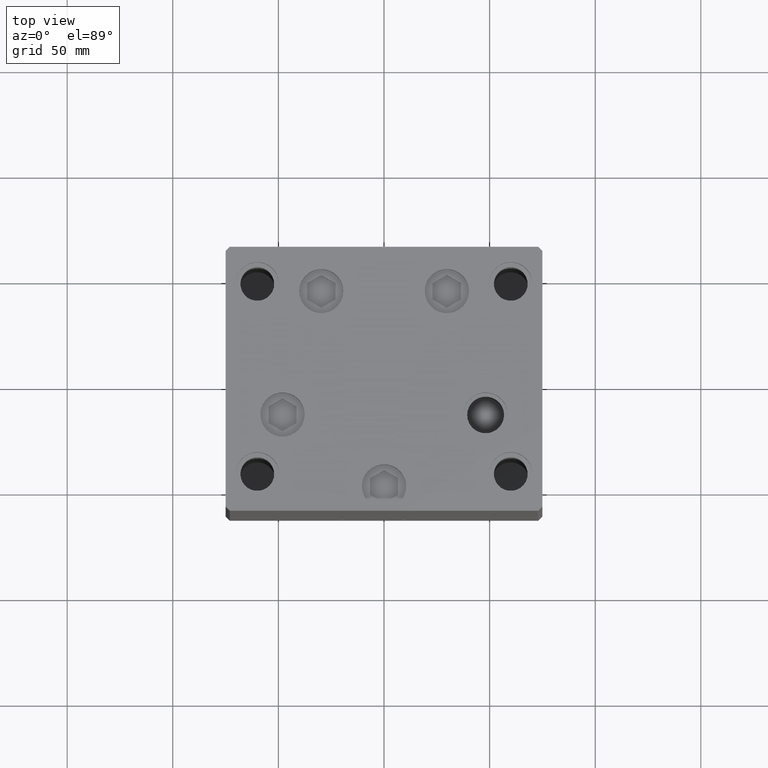
[diagram: clean part render]
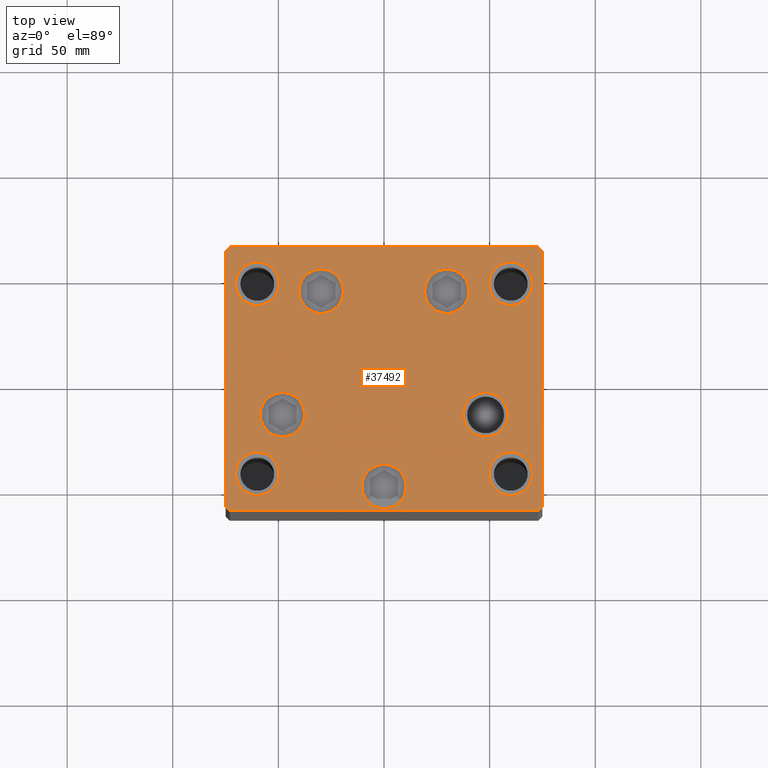
[diagram: same view with one face highlighted and labeled with its STEP entity id]
A machine part, top view. The second image highlights one B-rep face of the part: STEP entity #37492.
In plain terms, the highlighted planar face has unit normal (0, 0, 1).
Its self-contained STEP definition (entity closure, byte-faithful):
#206 = AXIS2_PLACEMENT_3D ( 'NONE', #4776, #27315, #5254 ) ;
#372 = FACE_BOUND ( 'NONE', #25570, .T. ) ;
#504 = CARTESIAN_POINT ( 'NONE',  ( -29.73102073172060500, 41.43749999999998579, 0.000000000000000000 ) ) ;
#571 = ORIENTED_EDGE ( 'NONE', *, *, #41883, .F. ) ;
#618 = EDGE_CURVE ( 'NONE', #41535, #44361, #8901, .T. ) ;
#691 = ORIENTED_EDGE ( 'NONE', *, *, #17236, .T. ) ;
#730 = EDGE_CURVE ( 'NONE', #46588, #30466, #32904, .T. ) ;
#834 = CIRCLE ( 'NONE', #22943, 10.50000000000000178 ) ;
#1082 = DIRECTION ( 'NONE',  ( 0.000000000000000000, -1.000000000000000000, 0.000000000000000000 ) ) ;
#1095 = EDGE_CURVE ( 'NONE', #34192, #30579, #35789, .T. ) ;
#1105 = ORIENTED_EDGE ( 'NONE', *, *, #13433, .T. ) ;
#1405 = CARTESIAN_POINT ( 'NONE',  ( 48.08326112068522207, -16.99999999999999645, 0.000000000000000000 ) ) ;
#1420 = VERTEX_POINT ( 'NONE', #30726 ) ;
#1573 = ORIENTED_EDGE ( 'NONE', *, *, #1095, .F. ) ;
#1731 = EDGE_CURVE ( 'NONE', #19332, #43581, #6142, .T. ) ;
#1792 = ORIENTED_EDGE ( 'NONE', *, *, #730, .T. ) ;
#1917 = EDGE_CURVE ( 'NONE', #18450, #3033, #29489, .T. ) ;
#2574 = CARTESIAN_POINT ( 'NONE',  ( -58.58326112068522207, -17.00000000000000711, 0.000000000000000000 ) ) ;
#2671 = CARTESIAN_POINT ( 'NONE',  ( 29.73102073172059789, 41.43749999999999289, 0.000000000000000000 ) ) ;
#3033 = VERTEX_POINT ( 'NONE', #47914 ) ;
#3256 = CARTESIAN_POINT ( 'NONE',  ( -60.00000000000000000, 45.00000000000000000, 0.000000000000000000 ) ) ;
#3749 = CARTESIAN_POINT ( 'NONE',  ( -60.00000000000000000, 45.00000000000000000, 0.000000000000000000 ) ) ;
#4084 = FACE_BOUND ( 'NONE', #37803, .T. ) ;
#4312 = ORIENTED_EDGE ( 'NONE', *, *, #15616, .F. ) ;
#4330 = DIRECTION ( 'NONE',  ( -0.000000000000000000, 0.000000000000000000, 1.000000000000000000 ) ) ;
#4404 = DIRECTION ( 'NONE',  ( 0.000000000000000000, 0.000000000000000000, 1.000000000000000000 ) ) ;
#4585 = FACE_BOUND ( 'NONE', #36975, .T. ) ;
#4749 = EDGE_CURVE ( 'NONE', #36020, #14062, #12994, .T. ) ;
#4776 = CARTESIAN_POINT ( 'NONE',  ( 60.00000000000000000, 44.99999999999999289, 0.000000000000000000 ) ) ;
#4926 = DIRECTION ( 'NONE',  ( 1.000000000000000000, 0.000000000000000000, 0.000000000000000000 ) ) ;
#4961 = CARTESIAN_POINT ( 'NONE',  ( 74.99999999999992895, 60.50000000000002842, 0.000000000000000000 ) ) ;
#5089 = AXIS2_PLACEMENT_3D ( 'NONE', #9610, #47239, #4926 ) ;
#5248 = CIRCLE ( 'NONE', #33717, 10.24999999999999467 ) ;
#5254 = DIRECTION ( 'NONE',  ( 1.000000000000000000, 0.000000000000000000, 0.000000000000000000 ) ) ;
#5751 = AXIS2_PLACEMENT_3D ( 'NONE', #1405, #13269, #42997 ) ;
#5871 = CARTESIAN_POINT ( 'NONE',  ( 58.58326112068522207, -16.99999999999999645, 0.000000000000000000 ) ) ;
#6142 = LINE ( 'NONE', #40802, #19191 ) ;
#6277 = CARTESIAN_POINT ( 'NONE',  ( 73.00000000000001421, -62.50000000000001421, 0.000000000000000000 ) ) ;
#6723 = EDGE_CURVE ( 'NONE', #44361, #41535, #10618, .T. ) ;
#7024 = CARTESIAN_POINT ( 'NONE',  ( 6.245698675651500444E-15, -51.00000000000000000, 0.000000000000000000 ) ) ;
#7634 = ORIENTED_EDGE ( 'NONE', *, *, #23107, .F. ) ;
#7685 = ORIENTED_EDGE ( 'NONE', *, *, #38299, .T. ) ;
#8047 = FACE_BOUND ( 'NONE', #13156, .T. ) ;
#8188 = CARTESIAN_POINT ( 'NONE',  ( -29.73102073172060500, 41.43749999999998579, 0.000000000000000000 ) ) ;
#8195 = DIRECTION ( 'NONE',  ( 0.000000000000000000, 0.000000000000000000, 1.000000000000000000 ) ) ;
#8273 = ORIENTED_EDGE ( 'NONE', *, *, #32425, .T. ) ;
#8291 = FACE_BOUND ( 'NONE', #24359, .T. ) ;
#8317 = VERTEX_POINT ( 'NONE', #35389 ) ;
#8657 = CARTESIAN_POINT ( 'NONE',  ( -48.08326112068522207, -17.00000000000000711, 0.000000000000000000 ) ) ;
#8816 = CARTESIAN_POINT ( 'NONE',  ( 48.08326112068522207, -16.99999999999999645, 0.000000000000000000 ) ) ;
#8901 = CIRCLE ( 'NONE', #41310, 10.50000000000000178 ) ;
#9610 = CARTESIAN_POINT ( 'NONE',  ( 29.73102073172059789, 41.43749999999999289, 0.000000000000000000 ) ) ;
#9611 = DIRECTION ( 'NONE',  ( 0.000000000000000000, -0.000000000000000000, -1.000000000000000000 ) ) ;
#9663 = LINE ( 'NONE', #13141, #33038 ) ;
#10618 = CIRCLE ( 'NONE', #29635, 10.50000000000000178 ) ;
#11121 = DIRECTION ( 'NONE',  ( -6.881547673296424104E-16, 1.000000000000000000, 0.000000000000000000 ) ) ;
#11256 = FACE_BOUND ( 'NONE', #40851, .T. ) ;
#11305 = DIRECTION ( 'NONE',  ( 0.000000000000000000, -0.000000000000000000, -1.000000000000000000 ) ) ;
#11501 = FACE_OUTER_BOUND ( 'NONE', #41254, .T. ) ;
#11809 = CARTESIAN_POINT ( 'NONE',  ( 49.75000000000000000, 44.99999999999999289, 0.000000000000000000 ) ) ;
#11839 = DIRECTION ( 'NONE',  ( 1.000000000000000000, 9.505334114941407284E-17, 0.000000000000000000 ) ) ;
#12110 = VERTEX_POINT ( 'NONE', #35355 ) ;
#12143 = DIRECTION ( 'NONE',  ( 1.000000000000000000, 0.000000000000000000, 0.000000000000000000 ) ) ;
#12312 = CARTESIAN_POINT ( 'NONE',  ( -73.00000000000001421, 62.49999999999998579, 0.000000000000000000 ) ) ;
#12390 = DIRECTION ( 'NONE',  ( 0.000000000000000000, -0.000000000000000000, -1.000000000000000000 ) ) ;
#12614 = DIRECTION ( 'NONE',  ( 0.000000000000000000, -0.000000000000000000, -1.000000000000000000 ) ) ;
#12625 = EDGE_CURVE ( 'NONE', #8317, #12110, #14685, .T. ) ;
#12737 = VERTEX_POINT ( 'NONE', #17556 ) ;
#12994 = CIRCLE ( 'NONE', #5089, 10.50000000000000178 ) ;
#13141 = CARTESIAN_POINT ( 'NONE',  ( -75.00000000000001421, -60.50000000000001421, 0.000000000000000000 ) ) ;
#13156 = EDGE_LOOP ( 'NONE', ( #7685, #1105 ) ) ;
#13269 = DIRECTION ( 'NONE',  ( 0.000000000000000000, -0.000000000000000000, -1.000000000000000000 ) ) ;
#13433 = EDGE_CURVE ( 'NONE', #14442, #39082, #37642, .T. ) ;
#13690 = ORIENTED_EDGE ( 'NONE', *, *, #43278, .T. ) ;
#13883 = VERTEX_POINT ( 'NONE', #41371 ) ;
#14037 = EDGE_LOOP ( 'NONE', ( #13690, #15746 ) ) ;
#14062 = VERTEX_POINT ( 'NONE', #29155 ) ;
#14081 = VERTEX_POINT ( 'NONE', #17752 ) ;
#14442 = VERTEX_POINT ( 'NONE', #30560 ) ;
#14552 = DIRECTION ( 'NONE',  ( 0.7071067811865463515, 0.7071067811865487940, 0.000000000000000000 ) ) ;
#14685 = CIRCLE ( 'NONE', #28952, 10.24999999999999467 ) ;
#14802 = CARTESIAN_POINT ( 'NONE',  ( 73.00000000000001421, -62.50000000000001421, 0.000000000000000000 ) ) ;
#15351 = DIRECTION ( 'NONE',  ( 0.000000000000000000, -0.000000000000000000, -1.000000000000000000 ) ) ;
#15616 = EDGE_CURVE ( 'NONE', #44933, #31340, #33010, .T. ) ;
#15746 = ORIENTED_EDGE ( 'NONE', *, *, #4749, .T. ) ;
#16036 = DIRECTION ( 'NONE',  ( 1.000000000000000000, 0.000000000000000000, 0.000000000000000000 ) ) ;
#16330 = ORIENTED_EDGE ( 'NONE', *, *, #24336, .T. ) ;
#16369 = ORIENTED_EDGE ( 'NONE', *, *, #41986, .T. ) ;
#17236 = EDGE_CURVE ( 'NONE', #46643, #12737, #48937, .T. ) ;
#17520 = CARTESIAN_POINT ( 'NONE',  ( 6.245698675651500444E-15, -51.00000000000000000, 0.000000000000000000 ) ) ;
#17556 = CARTESIAN_POINT ( 'NONE',  ( -19.23102073172060145, 41.43749999999998579, 0.000000000000000000 ) ) ;
#17752 = CARTESIAN_POINT ( 'NONE',  ( -70.25000000000000000, -45.00000000000000000, 0.000000000000000000 ) ) ;
#18450 = VERTEX_POINT ( 'NONE', #5871 ) ;
#18505 = CARTESIAN_POINT ( 'NONE',  ( -48.08326112068522207, -17.00000000000000711, 0.000000000000000000 ) ) ;
#18952 = VECTOR ( 'NONE', #20063, 1000.000000000000114 ) ;
#19005 = CARTESIAN_POINT ( 'NONE',  ( 72.99999999999992895, 62.50000000000001421, 0.000000000000000000 ) ) ;
#19030 = ORIENTED_EDGE ( 'NONE', *, *, #33831, .T. ) ;
#19189 = FACE_BOUND ( 'NONE', #42857, .T. ) ;
#19191 = VECTOR ( 'NONE', #29672, 1000.000000000000114 ) ;
#19332 = VERTEX_POINT ( 'NONE', #12312 ) ;
#19392 = CARTESIAN_POINT ( 'NONE',  ( -40.23102073172060500, 41.43749999999998579, 0.000000000000000000 ) ) ;
#19446 = EDGE_CURVE ( 'NONE', #14081, #25369, #36685, .T. ) ;
#19680 = DIRECTION ( 'NONE',  ( 1.000000000000000000, 0.000000000000000000, 0.000000000000000000 ) ) ;
#19697 = AXIS2_PLACEMENT_3D ( 'NONE', #504, #12614, #27743 ) ;
#19968 = VECTOR ( 'NONE', #14552, 1000.000000000000000 ) ;
#20058 = CIRCLE ( 'NONE', #31138, 10.25000000000000178 ) ;
#20063 = DIRECTION ( 'NONE',  ( -0.7071067811865500152, 0.7071067811865451302, 0.000000000000000000 ) ) ;
#20251 = CARTESIAN_POINT ( 'NONE',  ( -73.00000000000001421, -62.50000000000002842, 0.000000000000000000 ) ) ;
#20523 = DIRECTION ( 'NONE',  ( 1.000000000000000000, 0.000000000000000000, 0.000000000000000000 ) ) ;
#20580 = CARTESIAN_POINT ( 'NONE',  ( -59.99999999999999289, -45.00000000000000000, 0.000000000000000000 ) ) ;
#20861 = CARTESIAN_POINT ( 'NONE',  ( -75.00000000000001421, 60.49999999999997158, 0.000000000000000000 ) ) ;
#21219 = ORIENTED_EDGE ( 'NONE', *, *, #19446, .F. ) ;
#21465 = ORIENTED_EDGE ( 'NONE', *, *, #24607, .F. ) ;
#21474 = ORIENTED_EDGE ( 'NONE', *, *, #12625, .F. ) ;
#21594 = DIRECTION ( 'NONE',  ( -1.000000000000000000, -1.901066822988282689E-16, 0.000000000000000000 ) ) ;
#21845 = LINE ( 'NONE', #48321, #29623 ) ;
#21991 = AXIS2_PLACEMENT_3D ( 'NONE', #17520, #32625, #47691 ) ;
#22024 = VECTOR ( 'NONE', #11839, 1000.000000000000000 ) ;
#22036 = EDGE_CURVE ( 'NONE', #37221, #19332, #21845, .T. ) ;
#22222 = DIRECTION ( 'NONE',  ( 0.000000000000000000, 0.000000000000000000, 1.000000000000000000 ) ) ;
#22768 = CIRCLE ( 'NONE', #21991, 10.50000000000000000 ) ;
#22943 = AXIS2_PLACEMENT_3D ( 'NONE', #2671, #9611, #20523 ) ;
#22981 = EDGE_LOOP ( 'NONE', ( #39565, #21474 ) ) ;
#23107 = EDGE_CURVE ( 'NONE', #25369, #14081, #20058, .T. ) ;
#23401 = FACE_BOUND ( 'NONE', #14037, .T. ) ;
#23861 = LINE ( 'NONE', #20861, #45733 ) ;
#24336 = EDGE_CURVE ( 'NONE', #30466, #13883, #45035, .T. ) ;
#24359 = EDGE_LOOP ( 'NONE', ( #691, #16369 ) ) ;
#24607 = EDGE_CURVE ( 'NONE', #30579, #34192, #27994, .T. ) ;
#24889 = DIRECTION ( 'NONE',  ( 0.000000000000000000, -0.000000000000000000, -1.000000000000000000 ) ) ;
#25006 = CARTESIAN_POINT ( 'NONE',  ( 70.25000000000000000, 44.99999999999999289, 0.000000000000000000 ) ) ;
#25369 = VERTEX_POINT ( 'NONE', #39651 ) ;
#25570 = EDGE_LOOP ( 'NONE', ( #21465, #1573 ) ) ;
#25655 = CARTESIAN_POINT ( 'NONE',  ( -37.58326112068522207, -17.00000000000000711, 0.000000000000000000 ) ) ;
#26029 = CIRCLE ( 'NONE', #38686, 10.50000000000000178 ) ;
#26184 = CARTESIAN_POINT ( 'NONE',  ( 60.00000000000000000, 44.99999999999999289, 0.000000000000000000 ) ) ;
#27315 = DIRECTION ( 'NONE',  ( 0.000000000000000000, 0.000000000000000000, 1.000000000000000000 ) ) ;
#27510 = LINE ( 'NONE', #4961, #18952 ) ;
#27743 = DIRECTION ( 'NONE',  ( 1.000000000000000000, 0.000000000000000000, 0.000000000000000000 ) ) ;
#27921 = CARTESIAN_POINT ( 'NONE',  ( -59.99999999999999289, -45.00000000000000000, 0.000000000000000000 ) ) ;
#27994 = CIRCLE ( 'NONE', #40626, 10.24999999999999467 ) ;
#28384 = DIRECTION ( 'NONE',  ( 1.000000000000000000, 0.000000000000000000, 0.000000000000000000 ) ) ;
#28490 = CARTESIAN_POINT ( 'NONE',  ( -10.49999999999999289, -51.00000000000000000, 0.000000000000000000 ) ) ;
#28952 = AXIS2_PLACEMENT_3D ( 'NONE', #39117, #31696, #34934 ) ;
#29019 = CARTESIAN_POINT ( 'NONE',  ( -70.25000000000000000, 45.00000000000000000, 0.000000000000000000 ) ) ;
#29155 = CARTESIAN_POINT ( 'NONE',  ( 19.23102073172059434, 41.43749999999999289, 0.000000000000000000 ) ) ;
#29220 = EDGE_CURVE ( 'NONE', #12110, #8317, #5248, .T. ) ;
#29489 = CIRCLE ( 'NONE', #5751, 10.50000000000000178 ) ;
#29623 = VECTOR ( 'NONE', #21594, 1000.000000000000000 ) ;
#29635 = AXIS2_PLACEMENT_3D ( 'NONE', #18505, #11305, #37820 ) ;
#29672 = DIRECTION ( 'NONE',  ( -0.7071067811865451302, -0.7071067811865500152, 0.000000000000000000 ) ) ;
#29769 = DIRECTION ( 'NONE',  ( 1.000000000000000000, 0.000000000000000000, 0.000000000000000000 ) ) ;
#29776 = DIRECTION ( 'NONE',  ( 1.000000000000000000, 0.000000000000000000, 0.000000000000000000 ) ) ;
#30345 = PLANE ( 'NONE',  #44880 ) ;
#30466 = VERTEX_POINT ( 'NONE', #36282 ) ;
#30560 = CARTESIAN_POINT ( 'NONE',  ( 10.50000000000000711, -51.00000000000000000, 0.000000000000000000 ) ) ;
#30579 = VERTEX_POINT ( 'NONE', #25006 ) ;
#30634 = AXIS2_PLACEMENT_3D ( 'NONE', #8816, #24889, #28384 ) ;
#30726 = CARTESIAN_POINT ( 'NONE',  ( -73.00000000000001421, -62.50000000000002842, 0.000000000000000000 ) ) ;
#31138 = AXIS2_PLACEMENT_3D ( 'NONE', #20580, #35939, #32220 ) ;
#31340 = VERTEX_POINT ( 'NONE', #33789 ) ;
#31696 = DIRECTION ( 'NONE',  ( 0.000000000000000000, 0.000000000000000000, 1.000000000000000000 ) ) ;
#32123 = DIRECTION ( 'NONE',  ( 0.000000000000000000, 0.000000000000000000, 1.000000000000000000 ) ) ;
#32220 = DIRECTION ( 'NONE',  ( 1.000000000000000000, 0.000000000000000000, 0.000000000000000000 ) ) ;
#32425 = EDGE_CURVE ( 'NONE', #3033, #18450, #38549, .T. ) ;
#32625 = DIRECTION ( 'NONE',  ( 0.000000000000000000, -0.000000000000000000, -1.000000000000000000 ) ) ;
#32822 = ORIENTED_EDGE ( 'NONE', *, *, #1731, .T. ) ;
#32904 = LINE ( 'NONE', #14802, #19968 ) ;
#33010 = CIRCLE ( 'NONE', #44830, 10.25000000000000178 ) ;
#33038 = VECTOR ( 'NONE', #39407, 1000.000000000000114 ) ;
#33135 = DIRECTION ( 'NONE',  ( 1.000000000000000000, 0.000000000000000000, 0.000000000000000000 ) ) ;
#33178 = AXIS2_PLACEMENT_3D ( 'NONE', #3256, #44356, #29769 ) ;
#33296 = VERTEX_POINT ( 'NONE', #43051 ) ;
#33523 = DIRECTION ( 'NONE',  ( 1.000000000000000000, 0.000000000000000000, 0.000000000000000000 ) ) ;
#33717 = AXIS2_PLACEMENT_3D ( 'NONE', #38324, #4404, #16036 ) ;
#33771 = DIRECTION ( 'NONE',  ( 0.000000000000000000, -0.000000000000000000, -1.000000000000000000 ) ) ;
#33789 = CARTESIAN_POINT ( 'NONE',  ( -49.74999999999999289, 45.00000000000000000, 0.000000000000000000 ) ) ;
#33831 = EDGE_CURVE ( 'NONE', #33296, #1420, #9663, .T. ) ;
#34192 = VERTEX_POINT ( 'NONE', #11809 ) ;
#34934 = DIRECTION ( 'NONE',  ( 1.000000000000000000, 0.000000000000000000, 0.000000000000000000 ) ) ;
#35130 = LINE ( 'NONE', #20251, #22024 ) ;
#35355 = CARTESIAN_POINT ( 'NONE',  ( 70.25000000000000000, -44.99999999999999289, 0.000000000000000000 ) ) ;
#35389 = CARTESIAN_POINT ( 'NONE',  ( 49.75000000000000000, -44.99999999999999289, 0.000000000000000000 ) ) ;
#35789 = CIRCLE ( 'NONE', #206, 10.24999999999999467 ) ;
#35939 = DIRECTION ( 'NONE',  ( 0.000000000000000000, 0.000000000000000000, 1.000000000000000000 ) ) ;
#36001 = CARTESIAN_POINT ( 'NONE',  ( 75.00000000000001421, -60.50000000000000711, 0.000000000000000000 ) ) ;
#36020 = VERTEX_POINT ( 'NONE', #39825 ) ;
#36062 = AXIS2_PLACEMENT_3D ( 'NONE', #7024, #33771, #33523 ) ;
#36282 = CARTESIAN_POINT ( 'NONE',  ( 75.00000000000001421, -60.50000000000000711, 0.000000000000000000 ) ) ;
#36685 = CIRCLE ( 'NONE', #41403, 10.25000000000000178 ) ;
#36975 = EDGE_LOOP ( 'NONE', ( #7634, #21219 ) ) ;
#37221 = VERTEX_POINT ( 'NONE', #19005 ) ;
#37490 = VECTOR ( 'NONE', #11121, 1000.000000000000000 ) ;
#37492 = ADVANCED_FACE ( 'NONE', ( #8291, #23401, #4084, #8047, #11256, #38506, #4585, #19189, #372, #11501 ), #30345, .T. ) ;
#37642 = CIRCLE ( 'NONE', #36062, 10.50000000000000000 ) ;
#37803 = EDGE_LOOP ( 'NONE', ( #8273, #44158 ) ) ;
#37820 = DIRECTION ( 'NONE',  ( 1.000000000000000000, 0.000000000000000000, 0.000000000000000000 ) ) ;
#38299 = EDGE_CURVE ( 'NONE', #39082, #14442, #22768, .T. ) ;
#38324 = CARTESIAN_POINT ( 'NONE',  ( 60.00000000000000000, -44.99999999999999289, 0.000000000000000000 ) ) ;
#38506 = FACE_BOUND ( 'NONE', #22981, .T. ) ;
#38549 = CIRCLE ( 'NONE', #30634, 10.50000000000000178 ) ;
#38686 = AXIS2_PLACEMENT_3D ( 'NONE', #8188, #12390, #12143 ) ;
#39082 = VERTEX_POINT ( 'NONE', #28490 ) ;
#39117 = CARTESIAN_POINT ( 'NONE',  ( 60.00000000000000000, -44.99999999999999289, 0.000000000000000000 ) ) ;
#39251 = EDGE_CURVE ( 'NONE', #1420, #46588, #35130, .T. ) ;
#39407 = DIRECTION ( 'NONE',  ( 0.7071067811865451302, -0.7071067811865500152, 0.000000000000000000 ) ) ;
#39565 = ORIENTED_EDGE ( 'NONE', *, *, #29220, .F. ) ;
#39651 = CARTESIAN_POINT ( 'NONE',  ( -49.74999999999998579, -45.00000000000000000, 0.000000000000000000 ) ) ;
#39658 = EDGE_CURVE ( 'NONE', #43581, #33296, #23861, .T. ) ;
#39825 = CARTESIAN_POINT ( 'NONE',  ( 40.23102073172059789, 41.43749999999999289, 0.000000000000000000 ) ) ;
#40626 = AXIS2_PLACEMENT_3D ( 'NONE', #26184, #22222, #33135 ) ;
#40802 = CARTESIAN_POINT ( 'NONE',  ( -73.00000000000001421, 62.49999999999998579, 0.000000000000000000 ) ) ;
#40825 = ORIENTED_EDGE ( 'NONE', *, *, #618, .T. ) ;
#40851 = EDGE_LOOP ( 'NONE', ( #40825, #48922 ) ) ;
#40992 = CARTESIAN_POINT ( 'NONE',  ( -75.00000000000001421, 60.49999999999997158, 0.000000000000000000 ) ) ;
#41254 = EDGE_LOOP ( 'NONE', ( #19030, #41399, #1792, #16330, #47893, #46235, #32822, #48128 ) ) ;
#41310 = AXIS2_PLACEMENT_3D ( 'NONE', #8657, #15351, #41849 ) ;
#41371 = CARTESIAN_POINT ( 'NONE',  ( 74.99999999999992895, 60.50000000000002842, 0.000000000000000000 ) ) ;
#41399 = ORIENTED_EDGE ( 'NONE', *, *, #39251, .T. ) ;
#41403 = AXIS2_PLACEMENT_3D ( 'NONE', #27921, #32123, #43012 ) ;
#41535 = VERTEX_POINT ( 'NONE', #2574 ) ;
#41849 = DIRECTION ( 'NONE',  ( 1.000000000000000000, 0.000000000000000000, 0.000000000000000000 ) ) ;
#41883 = EDGE_CURVE ( 'NONE', #31340, #44933, #45808, .T. ) ;
#41986 = EDGE_CURVE ( 'NONE', #12737, #46643, #26029, .T. ) ;
#42069 = EDGE_CURVE ( 'NONE', #13883, #37221, #27510, .T. ) ;
#42857 = EDGE_LOOP ( 'NONE', ( #571, #4312 ) ) ;
#42997 = DIRECTION ( 'NONE',  ( 1.000000000000000000, 0.000000000000000000, 0.000000000000000000 ) ) ;
#43012 = DIRECTION ( 'NONE',  ( 1.000000000000000000, 0.000000000000000000, 0.000000000000000000 ) ) ;
#43051 = CARTESIAN_POINT ( 'NONE',  ( -75.00000000000001421, -60.50000000000001421, 0.000000000000000000 ) ) ;
#43278 = EDGE_CURVE ( 'NONE', #14062, #36020, #834, .T. ) ;
#43581 = VERTEX_POINT ( 'NONE', #40992 ) ;
#44158 = ORIENTED_EDGE ( 'NONE', *, *, #1917, .T. ) ;
#44356 = DIRECTION ( 'NONE',  ( 0.000000000000000000, 0.000000000000000000, 1.000000000000000000 ) ) ;
#44361 = VERTEX_POINT ( 'NONE', #25655 ) ;
#44830 = AXIS2_PLACEMENT_3D ( 'NONE', #3749, #8195, #29776 ) ;
#44880 = AXIS2_PLACEMENT_3D ( 'NONE', #45175, #4330, #19680 ) ;
#44933 = VERTEX_POINT ( 'NONE', #29019 ) ;
#45035 = LINE ( 'NONE', #36001, #37490 ) ;
#45175 = CARTESIAN_POINT ( 'NONE',  ( 0.000000000000000000, 0.000000000000000000, 0.000000000000000000 ) ) ;
#45733 = VECTOR ( 'NONE', #1082, 1000.000000000000000 ) ;
#45808 = CIRCLE ( 'NONE', #33178, 10.25000000000000178 ) ;
#46235 = ORIENTED_EDGE ( 'NONE', *, *, #22036, .T. ) ;
#46588 = VERTEX_POINT ( 'NONE', #6277 ) ;
#46643 = VERTEX_POINT ( 'NONE', #19392 ) ;
#47239 = DIRECTION ( 'NONE',  ( 0.000000000000000000, -0.000000000000000000, -1.000000000000000000 ) ) ;
#47691 = DIRECTION ( 'NONE',  ( 1.000000000000000000, 0.000000000000000000, 0.000000000000000000 ) ) ;
#47893 = ORIENTED_EDGE ( 'NONE', *, *, #42069, .T. ) ;
#47914 = CARTESIAN_POINT ( 'NONE',  ( 37.58326112068522207, -16.99999999999999645, 0.000000000000000000 ) ) ;
#48128 = ORIENTED_EDGE ( 'NONE', *, *, #39658, .T. ) ;
#48321 = CARTESIAN_POINT ( 'NONE',  ( 72.99999999999992895, 62.50000000000001421, 0.000000000000000000 ) ) ;
#48922 = ORIENTED_EDGE ( 'NONE', *, *, #6723, .T. ) ;
#48937 = CIRCLE ( 'NONE', #19697, 10.50000000000000178 ) ;